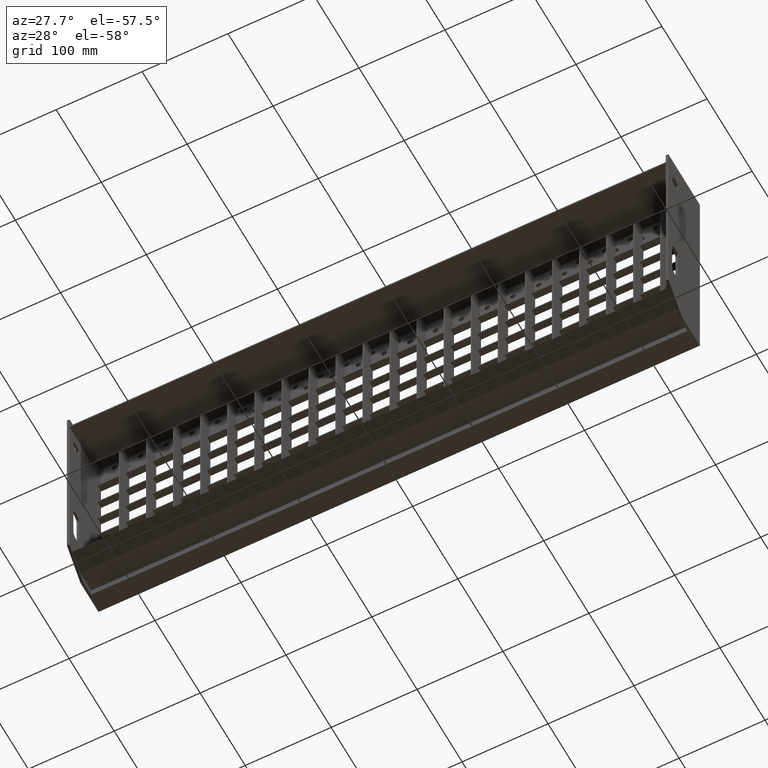
[diagram: clean part render]
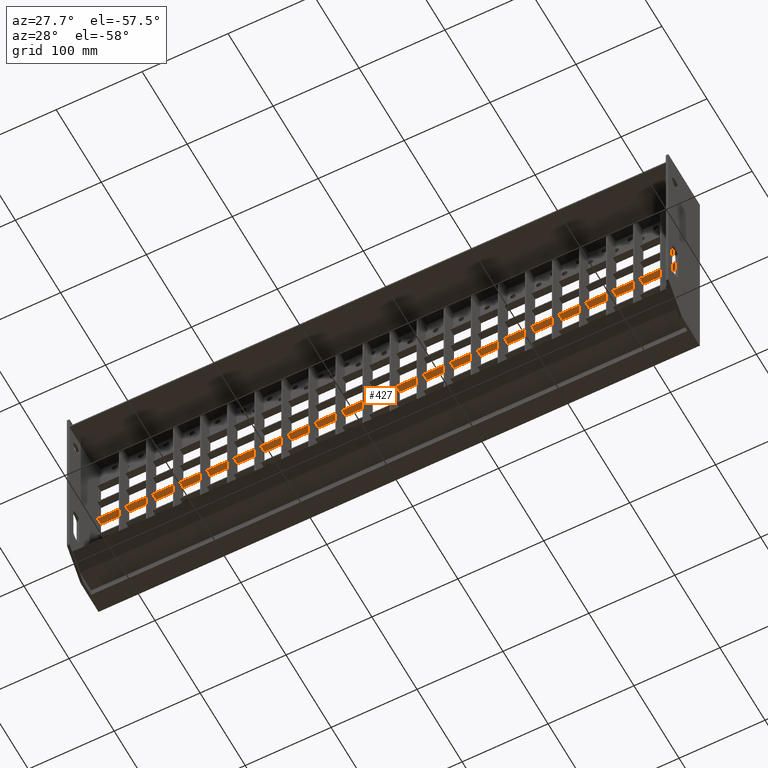
[diagram: same view with one face highlighted and labeled with its STEP entity id]
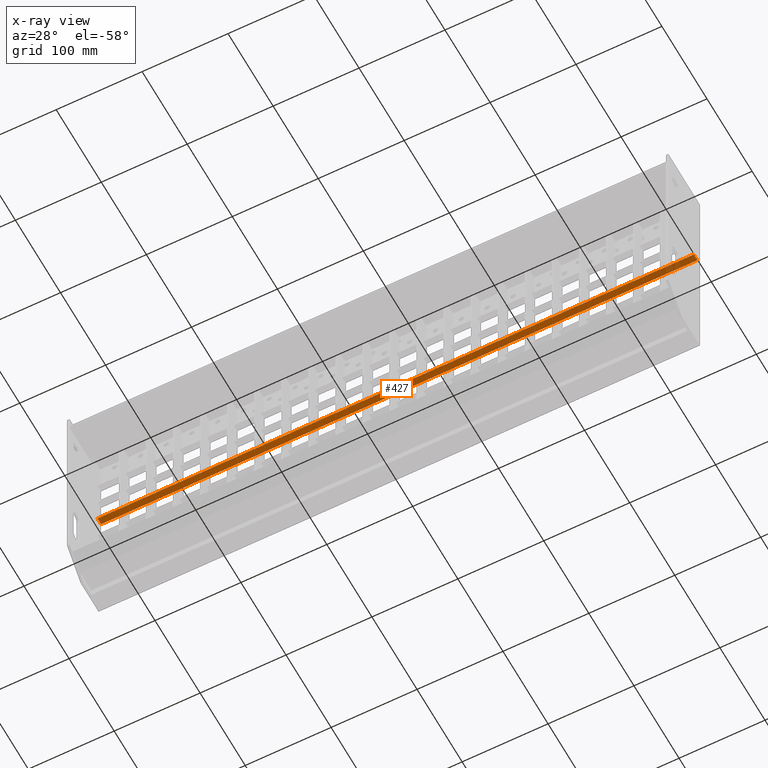
[diagram: x-ray of the same camera — body ghosted, the highlighted face saturated]
A machine part, auxiliary view. The second image highlights one B-rep face of the part: STEP entity #427.
The next image is the same camera in x-ray: the body ghosted, the highlighted face saturated — about 2% of this face is hidden behind the body in this view.
In plain terms, the highlighted planar face has unit normal (-0, 0, 1).
Its self-contained STEP definition (entity closure, byte-faithful):
#338 = CARTESIAN_POINT ( 'NONE',  ( 355.1394102980498200, 70.00000000000000000, -104.2500000000000100 ) ) ;
#427 = ADVANCED_FACE ( 'NONE', ( #10265 ), #25218, .F. ) ;
#840 = DIRECTION ( 'NONE',  ( -0.0000000000000000000, 0.0000000000000000000, 1.000000000000000000 ) ) ;
#2637 = DIRECTION ( 'NONE',  ( 0.0000000000000000000, -1.000000000000000000, 0.0000000000000000000 ) ) ;
#3170 = LINE ( 'NONE', #8468, #9883 ) ;
#4325 = DIRECTION ( 'NONE',  ( -1.000000000000000000, -0.0000000000000000000, -0.0000000000000000000 ) ) ;
#4993 = ORIENTED_EDGE ( 'NONE', *, *, #17695, .T. ) ;
#5214 = EDGE_CURVE ( 'NONE', #15789, #19922, #12370, .T. ) ;
#8116 = VECTOR ( 'NONE', #4325, 1000.000000000000000 ) ;
#8468 = CARTESIAN_POINT ( 'NONE',  ( 347.0000000000000000, 70.00000000000000000, -104.2500000000000100 ) ) ;
#8663 = DIRECTION ( 'NONE',  ( 0.0000000000000000000, -1.000000000000000000, 0.0000000000000000000 ) ) ;
#9883 = VECTOR ( 'NONE', #8663, 1000.000000000000000 ) ;
#10180 = CARTESIAN_POINT ( 'NONE',  ( 355.1394102980498200, 62.00000000000000700, -104.2500000000000100 ) ) ;
#10265 = FACE_OUTER_BOUND ( 'NONE', #22329, .T. ) ;
#10581 = VECTOR ( 'NONE', #24644, 1000.000000000000000 ) ;
#12370 = LINE ( 'NONE', #16710, #15540 ) ;
#13068 = CARTESIAN_POINT ( 'NONE',  ( 355.1394102980498200, 70.00000000000000000, -104.2500000000000100 ) ) ;
#13452 = AXIS2_PLACEMENT_3D ( 'NONE', #13068, #840, #15089 ) ;
#13564 = ORIENTED_EDGE ( 'NONE', *, *, #5214, .F. ) ;
#15089 = DIRECTION ( 'NONE',  ( 1.000000000000000000, 0.0000000000000000000, 0.0000000000000000000 ) ) ;
#15540 = VECTOR ( 'NONE', #2637, 1000.000000000000000 ) ;
#15706 = CARTESIAN_POINT ( 'NONE',  ( -347.0000000000000000, 70.00000000000000000, -104.2500000000000100 ) ) ;
#15789 = VERTEX_POINT ( 'NONE', #15706 ) ;
#15837 = ORIENTED_EDGE ( 'NONE', *, *, #25622, .F. ) ;
#16239 = EDGE_CURVE ( 'NONE', #19583, #19922, #23293, .T. ) ;
#16710 = CARTESIAN_POINT ( 'NONE',  ( -347.0000000000000000, 70.00000000000000000, -104.2500000000000100 ) ) ;
#17695 = EDGE_CURVE ( 'NONE', #18225, #19583, #3170, .T. ) ;
#18225 = VERTEX_POINT ( 'NONE', #20368 ) ;
#19258 = CARTESIAN_POINT ( 'NONE',  ( 347.0000000000000000, 62.00000000000000700, -104.2500000000000100 ) ) ;
#19583 = VERTEX_POINT ( 'NONE', #19258 ) ;
#19869 = LINE ( 'NONE', #338, #8116 ) ;
#19922 = VERTEX_POINT ( 'NONE', #21740 ) ;
#20368 = CARTESIAN_POINT ( 'NONE',  ( 347.0000000000000000, 70.00000000000000000, -104.2500000000000100 ) ) ;
#21740 = CARTESIAN_POINT ( 'NONE',  ( -347.0000000000000000, 62.00000000000000700, -104.2500000000000100 ) ) ;
#22329 = EDGE_LOOP ( 'NONE', ( #15837, #4993, #23251, #13564 ) ) ;
#23251 = ORIENTED_EDGE ( 'NONE', *, *, #16239, .T. ) ;
#23293 = LINE ( 'NONE', #10180, #10581 ) ;
#24644 = DIRECTION ( 'NONE',  ( -1.000000000000000000, -0.0000000000000000000, -0.0000000000000000000 ) ) ;
#25218 = PLANE ( 'NONE',  #13452 ) ;
#25622 = EDGE_CURVE ( 'NONE', #18225, #15789, #19869, .T. ) ;